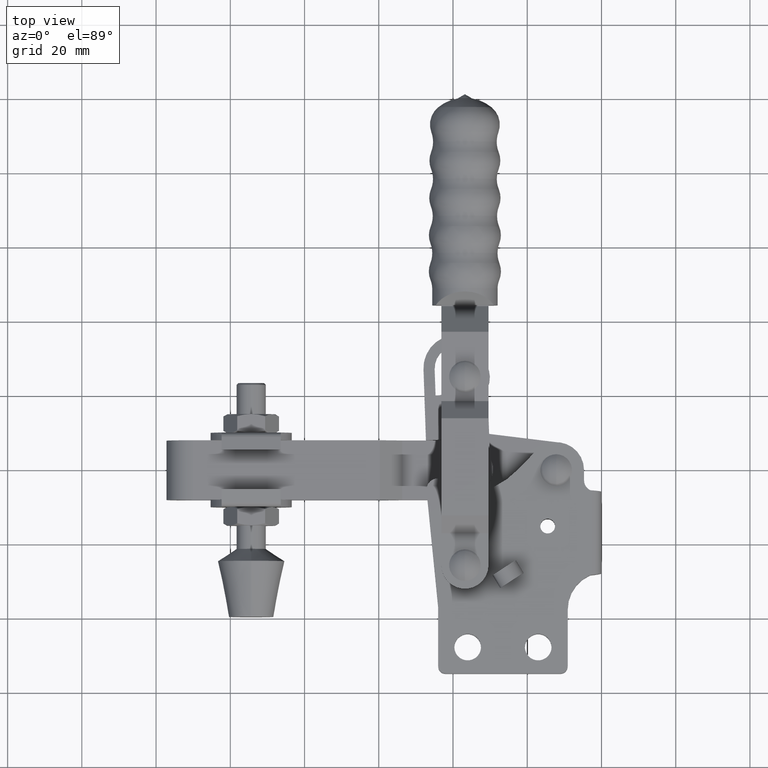
[diagram: clean part render]
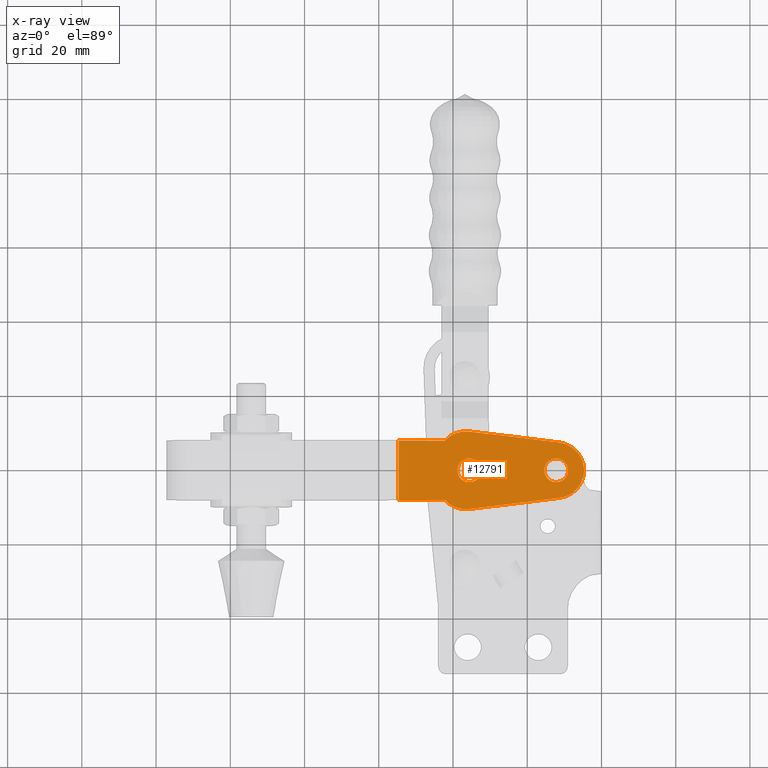
[diagram: x-ray — body ghosted, one internal face saturated and labeled with its STEP entity id]
A machine part, top view, then the same camera in x-ray: the body is ghosted and one INTERNAL B-rep face — a face not visible from any outside direction — is saturated and labeled: STEP entity #12791.
In plain terms, the highlighted planar face has unit normal (0, 0, 1).
Its self-contained STEP definition (entity closure, byte-faithful):
#92 = VERTEX_POINT ( 'NONE', #7429 ) ;
#122 = DIRECTION ( 'NONE',  ( 0.0000000000000000000, 1.000000000000000000, -1.914408056403607400E-018 ) ) ;
#151 = VECTOR ( 'NONE', #6367, 999.9999999999998900 ) ;
#440 = DIRECTION ( 'NONE',  ( -6.244988381752344700E-016, -1.914408056403607800E-018, -1.000000000000000000 ) ) ;
#600 = DIRECTION ( 'NONE',  ( -1.000000000000000000, 0.0000000000000000000, 6.244988381752342700E-016 ) ) ;
#777 = CARTESIAN_POINT ( 'NONE',  ( -36.59999999999863000, 36.80000000000223500, 5.000000002199048200E-005 ) ) ;
#934 = VERTEX_POINT ( 'NONE', #9884 ) ;
#972 = ORIENTED_EDGE ( 'NONE', *, *, #4614, .T. ) ;
#1052 = CARTESIAN_POINT ( 'NONE',  ( -38.79999999999970600, 39.80000000000009000, 5.000000002335863000E-005 ) ) ;
#1303 = CIRCLE ( 'NONE', #9253, 7.500000000002029500 ) ;
#1387 = EDGE_CURVE ( 'NONE', #5116, #3293, #11097, .T. ) ;
#1727 = VECTOR ( 'NONE', #122, 1000.000000000000000 ) ;
#1762 = DIRECTION ( 'NONE',  ( 4.625929269270234200E-015, -1.000000000000000000, 1.914647391188889900E-018 ) ) ;
#1785 = ORIENTED_EDGE ( 'NONE', *, *, #9783, .F. ) ;
#1798 = DIRECTION ( 'NONE',  ( -6.244988381752344700E-016, -1.914408056403607800E-018, -1.000000000000000000 ) ) ;
#1807 = CARTESIAN_POINT ( 'NONE',  ( -58.33459314670958000, 24.30000000000010000, 5.000000003537079700E-005 ) ) ;
#1852 = FACE_OUTER_BOUND ( 'NONE', #6287, .T. ) ;
#1998 = CARTESIAN_POINT ( 'NONE',  ( -36.59999999999863000, 36.80000000000223500, 5.000000002199048200E-005 ) ) ;
#2033 = EDGE_CURVE ( 'NONE', #9247, #3975, #8995, .T. ) ;
#2062 = AXIS2_PLACEMENT_3D ( 'NONE', #7723, #1798, #8741 ) ;
#2160 = ORIENTED_EDGE ( 'NONE', *, *, #11194, .T. ) ;
#2186 = DIRECTION ( 'NONE',  ( 0.0000000000000000000, -1.000000000000000000, 1.914923118060208600E-018 ) ) ;
#2475 = CARTESIAN_POINT ( 'NONE',  ( -42.19016994374904100, 47.79999999999980500, 5.000000002546047800E-005 ) ) ;
#2540 = CIRCLE ( 'NONE', #2062, 7.499999999999978700 ) ;
#2826 = DIRECTION ( 'NONE',  ( 0.0000000000000000000, -1.000000000000000000, 1.914408056403607400E-018 ) ) ;
#2915 = DIRECTION ( 'NONE',  ( 0.9925261778147188600, -0.1220319071083670700, -6.195978260376914500E-016 ) ) ;
#3005 = VERTEX_POINT ( 'NONE', #7097 ) ;
#3013 = DIRECTION ( 'NONE',  ( 0.0000000000000000000, -1.000000000000000000, 1.914647391188889900E-018 ) ) ;
#3039 = CARTESIAN_POINT ( 'NONE',  ( -12.19999999999952000, 39.80000000000009000, 5.000000000674696500E-005 ) ) ;
#3143 = ORIENTED_EDGE ( 'NONE', *, *, #6554, .T. ) ;
#3170 = CARTESIAN_POINT ( 'NONE',  ( -36.59999999999951800, 42.80000000000048700, 5.000000002197899600E-005 ) ) ;
#3222 = VECTOR ( 'NONE', #600, 1000.000000000000000 ) ;
#3233 = CARTESIAN_POINT ( 'NONE',  ( -35.68476069668681600, 50.24394633361047400, 5.000000002139317500E-005 ) ) ;
#3293 = VERTEX_POINT ( 'NONE', #1052 ) ;
#3553 = EDGE_CURVE ( 'NONE', #934, #3666, #8191, .T. ) ;
#3619 = CARTESIAN_POINT ( 'NONE',  ( -15.39999999999959700, 39.80000000000009000, 5.000000000874536000E-005 ) ) ;
#3629 = AXIS2_PLACEMENT_3D ( 'NONE', #3170, #10090, #4141 ) ;
#3666 = VERTEX_POINT ( 'NONE', #3619 ) ;
#3975 = VERTEX_POINT ( 'NONE', #5544 ) ;
#3991 = ORIENTED_EDGE ( 'NONE', *, *, #1387, .F. ) ;
#4009 = DIRECTION ( 'NONE',  ( 0.0000000000000000000, -1.000000000000000000, 1.914923118060212500E-018 ) ) ;
#4012 = EDGE_CURVE ( 'NONE', #10940, #5259, #8500, .T. ) ;
#4141 = DIRECTION ( 'NONE',  ( 0.0000000000000000000, -1.000000000000000000, 1.914647391189514200E-018 ) ) ;
#4209 = ORIENTED_EDGE ( 'NONE', *, *, #11786, .T. ) ;
#4287 = ORIENTED_EDGE ( 'NONE', *, *, #2033, .T. ) ;
#4313 = DIRECTION ( 'NONE',  ( -6.244988381752344700E-016, -1.914408056403607800E-018, -1.000000000000000000 ) ) ;
#4403 = LINE ( 'NONE', #9306, #11972 ) ;
#4434 = EDGE_LOOP ( 'NONE', ( #3991, #1785 ) ) ;
#4561 = ORIENTED_EDGE ( 'NONE', *, *, #3553, .F. ) ;
#4614 = EDGE_CURVE ( 'NONE', #3005, #9247, #2540, .T. ) ;
#4710 = VERTEX_POINT ( 'NONE', #8896 ) ;
#5116 = VERTEX_POINT ( 'NONE', #11383 ) ;
#5259 = VERTEX_POINT ( 'NONE', #11628 ) ;
#5376 = CARTESIAN_POINT ( 'NONE',  ( -11.28476069668675800, 32.35605366638972000, 5.000000000618965200E-005 ) ) ;
#5544 = CARTESIAN_POINT ( 'NONE',  ( -35.68476069668562200, 29.35605366638983000, 5.000000002143316100E-005 ) ) ;
#5782 = CIRCLE ( 'NONE', #9524, 3.200000000000084600 ) ;
#5843 = CARTESIAN_POINT ( 'NONE',  ( -35.68476069668681600, 50.24394633361047400, 5.000000002139317500E-005 ) ) ;
#6287 = EDGE_LOOP ( 'NONE', ( #8767, #11999, #4209, #972, #4287, #7912, #2160, #7201, #3143 ) ) ;
#6311 = CARTESIAN_POINT ( 'NONE',  ( -42.19016994375059700, 31.80000000000198000, 5.000000002549110700E-005 ) ) ;
#6367 = DIRECTION ( 'NONE',  ( -0.9925261778147187500, -0.1220319071083683100, 6.200650637699044800E-016 ) ) ;
#6390 = CARTESIAN_POINT ( 'NONE',  ( -12.19999999999952000, 39.80000000000009000, 5.000000000674696500E-005 ) ) ;
#6397 = CIRCLE ( 'NONE', #3629, 7.499999999999583400 ) ;
#6496 = DIRECTION ( 'NONE',  ( -6.244988381752344700E-016, -1.914408056403607800E-018, -1.000000000000000000 ) ) ;
#6554 = EDGE_CURVE ( 'NONE', #5259, #92, #9943, .T. ) ;
#7036 = EDGE_CURVE ( 'NONE', #3975, #4710, #10080, .T. ) ;
#7065 = AXIS2_PLACEMENT_3D ( 'NONE', #3039, #9966, #4009 ) ;
#7086 = AXIS2_PLACEMENT_3D ( 'NONE', #10139, #6496, #2186 ) ;
#7097 = CARTESIAN_POINT ( 'NONE',  ( -11.28476069668676700, 47.24394633361046700, 5.000000000616114400E-005 ) ) ;
#7201 = ORIENTED_EDGE ( 'NONE', *, *, #4012, .T. ) ;
#7325 = DIRECTION ( 'NONE',  ( 1.000000000000000000, -6.475452256180996100E-015, -6.244988381752342700E-016 ) ) ;
#7393 = DIRECTION ( 'NONE',  ( 0.0000000000000000000, -1.000000000000000000, 1.914923118060212500E-018 ) ) ;
#7429 = CARTESIAN_POINT ( 'NONE',  ( -54.63648813063139900, 47.79999999999991200, 5.000000003323319100E-005 ) ) ;
#7698 = DIRECTION ( 'NONE',  ( -6.244988381752344700E-016, -1.914408056403607800E-018, -1.000000000000000000 ) ) ;
#7712 = CIRCLE ( 'NONE', #7065, 3.200000000000077900 ) ;
#7723 = CARTESIAN_POINT ( 'NONE',  ( -12.19999999999952000, 39.80000000000009000, 5.000000000674696500E-005 ) ) ;
#7912 = ORIENTED_EDGE ( 'NONE', *, *, #7036, .T. ) ;
#7928 = AXIS2_PLACEMENT_3D ( 'NONE', #1807, #8752, #2826 ) ;
#8004 = EDGE_CURVE ( 'NONE', #3666, #934, #7712, .T. ) ;
#8191 = CIRCLE ( 'NONE', #8873, 3.200000000000077900 ) ;
#8412 = EDGE_LOOP ( 'NONE', ( #4561, #11486 ) ) ;
#8500 = LINE ( 'NONE', #12517, #3222 ) ;
#8534 = AXIS2_PLACEMENT_3D ( 'NONE', #777, #7698, #1762 ) ;
#8575 = VECTOR ( 'NONE', #2915, 1000.000000000000100 ) ;
#8709 = PLANE ( 'NONE',  #7928 ) ;
#8741 = DIRECTION ( 'NONE',  ( 0.0000000000000000000, -1.000000000000000000, 1.914647391189413300E-018 ) ) ;
#8752 = DIRECTION ( 'NONE',  ( 6.244988381752344700E-016, 1.914408056403607400E-018, 1.000000000000000000 ) ) ;
#8767 = ORIENTED_EDGE ( 'NONE', *, *, #9361, .T. ) ;
#8865 = LINE ( 'NONE', #5843, #8575 ) ;
#8873 = AXIS2_PLACEMENT_3D ( 'NONE', #6390, #440, #7393 ) ;
#8896 = CARTESIAN_POINT ( 'NONE',  ( -36.59999999999863000, 29.30000000000020300, 5.000000002200484100E-005 ) ) ;
#8934 = DIRECTION ( 'NONE',  ( -6.244988381752344700E-016, -1.914408056403607800E-018, -1.000000000000000000 ) ) ;
#8995 = LINE ( 'NONE', #5376, #151 ) ;
#9172 = CARTESIAN_POINT ( 'NONE',  ( -11.28476069668675800, 32.35605366638972000, 5.000000000618965200E-005 ) ) ;
#9247 = VERTEX_POINT ( 'NONE', #9172 ) ;
#9253 = AXIS2_PLACEMENT_3D ( 'NONE', #1998, #8934, #3013 ) ;
#9306 = CARTESIAN_POINT ( 'NONE',  ( -117.2000000000004000, 47.80000000000030300, 5.000000007230403600E-005 ) ) ;
#9361 = EDGE_CURVE ( 'NONE', #92, #9395, #4403, .T. ) ;
#9395 = VERTEX_POINT ( 'NONE', #2475 ) ;
#9469 = FACE_BOUND ( 'NONE', #8412, .T. ) ;
#9524 = AXIS2_PLACEMENT_3D ( 'NONE', #10269, #4313, #11264 ) ;
#9766 = FACE_BOUND ( 'NONE', #4434, .T. ) ;
#9783 = EDGE_CURVE ( 'NONE', #3293, #5116, #5782, .T. ) ;
#9884 = CARTESIAN_POINT ( 'NONE',  ( -8.999999999999444000, 39.80000000000009000, 5.000000000474857100E-005 ) ) ;
#9943 = LINE ( 'NONE', #11991, #1727 ) ;
#9966 = DIRECTION ( 'NONE',  ( -6.244988381752344700E-016, -1.914408056403607800E-018, -1.000000000000000000 ) ) ;
#10080 = CIRCLE ( 'NONE', #8534, 7.500000000002029500 ) ;
#10090 = DIRECTION ( 'NONE',  ( -6.244988381752344700E-016, -1.914408056403607800E-018, -1.000000000000000000 ) ) ;
#10139 = CARTESIAN_POINT ( 'NONE',  ( -35.59999999999961800, 39.80000000000009000, 5.000000002136023500E-005 ) ) ;
#10269 = CARTESIAN_POINT ( 'NONE',  ( -35.59999999999961800, 39.80000000000009000, 5.000000002136023500E-005 ) ) ;
#10940 = VERTEX_POINT ( 'NONE', #6311 ) ;
#11097 = CIRCLE ( 'NONE', #7086, 3.200000000000084600 ) ;
#11194 = EDGE_CURVE ( 'NONE', #4710, #10940, #1303, .T. ) ;
#11264 = DIRECTION ( 'NONE',  ( 0.0000000000000000000, -1.000000000000000000, 1.914923118060208600E-018 ) ) ;
#11383 = CARTESIAN_POINT ( 'NONE',  ( -32.39999999999953700, 39.80000000000009000, 5.000000001936184100E-005 ) ) ;
#11486 = ORIENTED_EDGE ( 'NONE', *, *, #8004, .F. ) ;
#11628 = CARTESIAN_POINT ( 'NONE',  ( -54.63648813063139900, 31.80000000000198000, 5.000000003326381300E-005 ) ) ;
#11786 = EDGE_CURVE ( 'NONE', #12023, #3005, #8865, .T. ) ;
#11925 = EDGE_CURVE ( 'NONE', #9395, #12023, #6397, .T. ) ;
#11972 = VECTOR ( 'NONE', #7325, 1000.000000000000000 ) ;
#11991 = CARTESIAN_POINT ( 'NONE',  ( -54.63648813063139900, 50.30000000000010400, 5.000000003322840000E-005 ) ) ;
#11999 = ORIENTED_EDGE ( 'NONE', *, *, #11925, .T. ) ;
#12023 = VERTEX_POINT ( 'NONE', #3233 ) ;
#12517 = CARTESIAN_POINT ( 'NONE',  ( -42.19016994375059000, 31.80000000000198000, 5.000000002549110700E-005 ) ) ;
#12791 = ADVANCED_FACE ( 'NONE', ( #9766, #9469, #1852 ), #8709, .F. ) ;